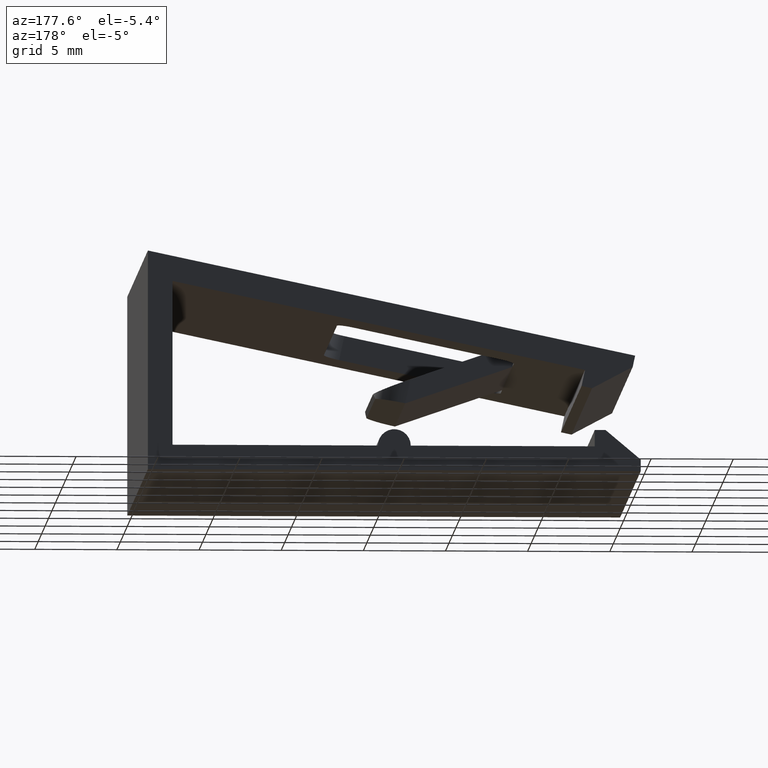
[diagram: clean part render]
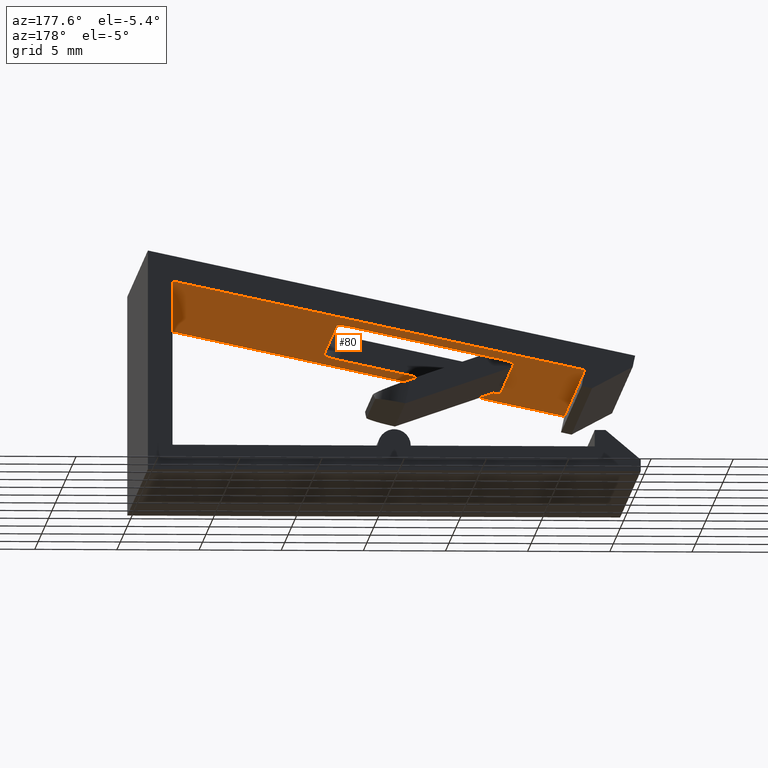
[diagram: same view with one face highlighted and labeled with its STEP entity id]
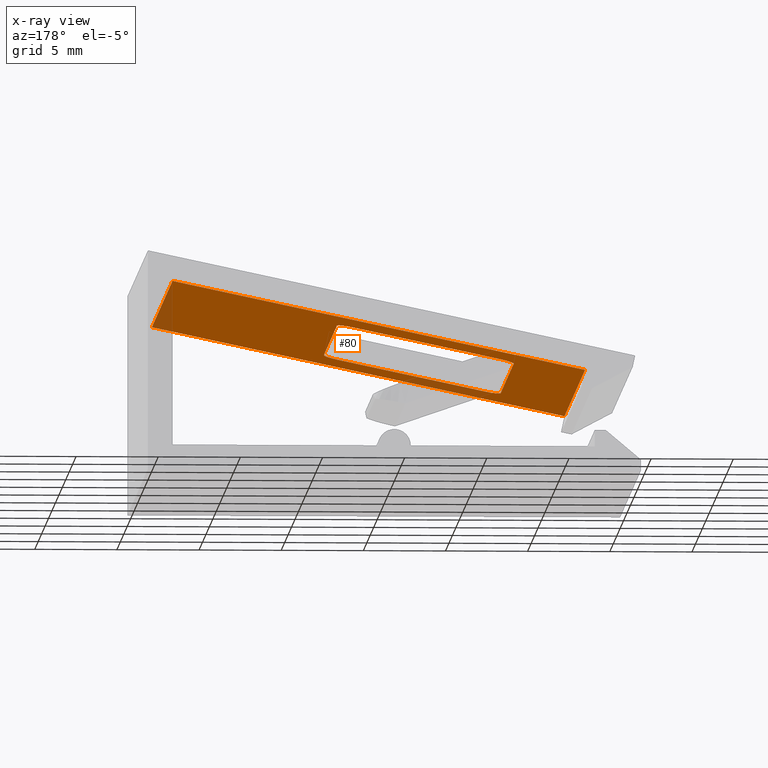
[diagram: x-ray of the same camera — body ghosted, the highlighted face saturated]
A machine part, auxiliary view. The second image highlights one B-rep face of the part: STEP entity #80.
The next image is the same camera in x-ray: the body ghosted, the highlighted face saturated — about 7% of this face is hidden behind the body in this view.
In plain terms, the highlighted planar face has unit normal (0.2079, 0, -0.9781).
Its self-contained STEP definition (entity closure, byte-faithful):
#80 = ADVANCED_FACE( '', ( #121, #122 ), #123, .T. );
#121 = FACE_OUTER_BOUND( '', #193, .T. );
#122 = FACE_BOUND( '', #194, .T. );
#123 = PLANE( '', #195 );
#193 = EDGE_LOOP( '', ( #290, #291, #292, #293 ) );
#194 = EDGE_LOOP( '', ( #294, #295, #296, #297, #298, #299, #300, #301, #302, #303 ) );
#195 = AXIS2_PLACEMENT_3D( '', #304, #305, #306 );
#290 = ORIENTED_EDGE( '', *, *, #562, .F. );
#291 = ORIENTED_EDGE( '', *, *, #563, .F. );
#292 = ORIENTED_EDGE( '', *, *, #564, .T. );
#293 = ORIENTED_EDGE( '', *, *, #565, .T. );
#294 = ORIENTED_EDGE( '', *, *, #566, .F. );
#295 = ORIENTED_EDGE( '', *, *, #567, .T. );
#296 = ORIENTED_EDGE( '', *, *, #568, .T. );
#297 = ORIENTED_EDGE( '', *, *, #569, .T. );
#298 = ORIENTED_EDGE( '', *, *, #570, .F. );
#299 = ORIENTED_EDGE( '', *, *, #560, .T. );
#300 = ORIENTED_EDGE( '', *, *, #571, .F. );
#301 = ORIENTED_EDGE( '', *, *, #572, .T. );
#302 = ORIENTED_EDGE( '', *, *, #573, .F. );
#303 = ORIENTED_EDGE( '', *, *, #574, .T. );
#304 = CARTESIAN_POINT( '', ( -11.6056147399596, 15.0000000000000, 6.16480200975693 ) );
#305 = DIRECTION( '', ( 0.207911690817759, 1.66946366144741E-016, -0.978147600733806 ) );
#306 = DIRECTION( '', ( -0.978147600733806, 9.80837849831438E-017, -0.207911690817759 ) );
#560 = EDGE_CURVE( '', #665, #640, #666, .T. );
#562 = EDGE_CURVE( '', #668, #669, #670, .T. );
#563 = EDGE_CURVE( '', #671, #668, #672, .T. );
#564 = EDGE_CURVE( '', #671, #673, #674, .T. );
#565 = EDGE_CURVE( '', #673, #669, #675, .T. );
#566 = EDGE_CURVE( '', #676, #677, #678, .T. );
#567 = EDGE_CURVE( '', #676, #679, #680, .F. );
#568 = EDGE_CURVE( '', #679, #681, #682, .T. );
#569 = EDGE_CURVE( '', #681, #683, #684, .F. );
#570 = EDGE_CURVE( '', #665, #683, #685, .T. );
#571 = EDGE_CURVE( '', #686, #640, #687, .T. );
#572 = EDGE_CURVE( '', #686, #688, #689, .F. );
#573 = EDGE_CURVE( '', #690, #688, #691, .T. );
#574 = EDGE_CURVE( '', #690, #677, #692, .F. );
#640 = VERTEX_POINT( '', #793 );
#665 = VERTEX_POINT( '', #828 );
#666 = LINE( '', #829, #830 );
#668 = VERTEX_POINT( '', #833 );
#669 = VERTEX_POINT( '', #834 );
#670 = LINE( '', #835, #836 );
#671 = VERTEX_POINT( '', #837 );
#672 = LINE( '', #838, #839 );
#673 = VERTEX_POINT( '', #840 );
#674 = LINE( '', #841, #842 );
#675 = LINE( '', #843, #844 );
#676 = VERTEX_POINT( '', #845 );
#677 = VERTEX_POINT( '', #846 );
#678 = LINE( '', #847, #848 );
#679 = VERTEX_POINT( '', #849 );
#680 = CIRCLE( '', #850, 1.00000000000000 );
#681 = VERTEX_POINT( '', #851 );
#682 = LINE( '', #852, #853 );
#683 = VERTEX_POINT( '', #854 );
#684 = CIRCLE( '', #855, 1.00000000000000 );
#685 = LINE( '', #856, #857 );
#686 = VERTEX_POINT( '', #858 );
#687 = LINE( '', #859, #860 );
#688 = VERTEX_POINT( '', #861 );
#689 = CIRCLE( '', #862, 1.00000000000000 );
#690 = VERTEX_POINT( '', #863 );
#691 = LINE( '', #864, #865 );
#692 = CIRCLE( '', #866, 1.00000000000000 );
#793 = CARTESIAN_POINT( '', ( -7.49739481687761, -7.50000000000000, 7.03803111119152 ) );
#828 = CARTESIAN_POINT( '', ( -7.49739481687761, 7.50000000000000, 7.03803111119153 ) );
#829 = CARTESIAN_POINT( '', ( -7.49739481687761, 7.50000000000000, 7.03803111119153 ) );
#830 = VECTOR( '', #1044, 1000.00000000000 );
#833 = CARTESIAN_POINT( '', ( -11.6056147399596, -15.0000000000000, 6.16480200975693 ) );
#834 = CARTESIAN_POINT( '', ( 13.5000000000000, -15.0000000000000, 11.5011651574950 ) );
#835 = CARTESIAN_POINT( '', ( -11.6056147399596, -15.0000000000000, 6.16480200975693 ) );
#836 = VECTOR( '', #1046, 1000.00000000000 );
#837 = CARTESIAN_POINT( '', ( -11.6056147399596, 15.0000000000000, 6.16480200975693 ) );
#838 = CARTESIAN_POINT( '', ( -11.6056147399596, 15.0000000000000, 6.16480200975693 ) );
#839 = VECTOR( '', #1047, 1000.00000000000 );
#840 = CARTESIAN_POINT( '', ( 13.5000000000000, 15.0000000000000, 11.5011651574950 ) );
#841 = CARTESIAN_POINT( '', ( -11.6056147399596, 15.0000000000000, 6.16480200975693 ) );
#842 = VECTOR( '', #1048, 1000.00000000000 );
#843 = CARTESIAN_POINT( '', ( 13.5000000000000, 15.0000000000000, 11.5011651574950 ) );
#844 = VECTOR( '', #1049, 1000.00000000000 );
#845 = CARTESIAN_POINT( '', ( 3.26222879119427, 9.50000000000000, 9.32505971018688 ) );
#846 = CARTESIAN_POINT( '', ( 3.26222879119426, -9.50000000000000, 9.32505971018687 ) );
#847 = CARTESIAN_POINT( '', ( 3.26222879119427, 15.0000000000000, 9.32505971018688 ) );
#848 = VECTOR( '', #1050, 1000.00000000000 );
#849 = CARTESIAN_POINT( '', ( 2.28408119046046, 10.5000000000000, 9.11714801936912 ) );
#850 = AXIS2_PLACEMENT_3D( '', #1051, #1052, #1053 );
#851 = CARTESIAN_POINT( '', ( -6.51924721614385, 10.5000000000000, 7.24594280200927 ) );
#852 = CARTESIAN_POINT( '', ( -11.6056147399596, 10.5000000000000, 6.16480200975693 ) );
#853 = VECTOR( '', #1054, 1000.00000000000 );
#854 = CARTESIAN_POINT( '', ( -7.49739481687765, 9.50000000000000, 7.03803111119151 ) );
#855 = AXIS2_PLACEMENT_3D( '', #1055, #1056, #1057 );
#856 = CARTESIAN_POINT( '', ( -7.49739481687765, 15.0000000000000, 7.03803111119151 ) );
#857 = VECTOR( '', #1058, 1000.00000000000 );
#858 = CARTESIAN_POINT( '', ( -7.49739481687765, -9.50000000000000, 7.03803111119151 ) );
#859 = CARTESIAN_POINT( '', ( -7.49739481687765, 15.0000000000000, 7.03803111119151 ) );
#860 = VECTOR( '', #1059, 1000.00000000000 );
#861 = CARTESIAN_POINT( '', ( -6.51924721614385, -10.5000000000000, 7.24594280200927 ) );
#862 = AXIS2_PLACEMENT_3D( '', #1060, #1061, #1062 );
#863 = CARTESIAN_POINT( '', ( 2.28408119046046, -10.5000000000000, 9.11714801936911 ) );
#864 = CARTESIAN_POINT( '', ( -11.6056147399596, -10.5000000000000, 6.16480200975693 ) );
#865 = VECTOR( '', #1063, 1000.00000000000 );
#866 = AXIS2_PLACEMENT_3D( '', #1064, #1065, #1066 );
#1044 = DIRECTION( '', ( -6.12303176911189E-017, -1.00000000000000, -1.83690953073357E-016 ) );
#1046 = DIRECTION( '', ( 0.978147600733806, -9.80837849831438E-017, 0.207911690817759 ) );
#1047 = DIRECTION( '', ( -6.12303176911189E-017, -1.00000000000000, -1.83690953073357E-016 ) );
#1048 = DIRECTION( '', ( 0.978147600733806, -9.80837849831438E-017, 0.207911690817759 ) );
#1049 = DIRECTION( '', ( -6.12303176911189E-017, -1.00000000000000, -1.83690953073357E-016 ) );
#1050 = DIRECTION( '', ( -6.12303176911189E-017, -1.00000000000000, -1.83690953073357E-016 ) );
#1051 = CARTESIAN_POINT( '', ( 2.28408119046046, 9.50000000000000, 9.11714801936912 ) );
#1052 = DIRECTION( '', ( 0.207911690817759, 1.66946366144741E-016, -0.978147600733806 ) );
#1053 = DIRECTION( '', ( 0.978147600733806, -9.80837849831439E-017, 0.207911690817759 ) );
#1054 = DIRECTION( '', ( -0.978147600733806, 9.80837849831438E-017, -0.207911690817759 ) );
#1055 = CARTESIAN_POINT( '', ( -6.51924721614385, 9.50000000000000, 7.24594280200928 ) );
#1056 = DIRECTION( '', ( 0.207911690817759, 1.66946366144741E-016, -0.978147600733806 ) );
#1057 = DIRECTION( '', ( 0.978147600733806, -9.80837849831439E-017, 0.207911690817759 ) );
#1058 = DIRECTION( '', ( 6.12303176911189E-017, 1.00000000000000, 1.83690953073357E-016 ) );
#1059 = DIRECTION( '', ( 6.12303176911189E-017, 1.00000000000000, 1.83690953073357E-016 ) );
#1060 = CARTESIAN_POINT( '', ( -6.51924721614385, -9.50000000000000, 7.24594280200927 ) );
#1061 = DIRECTION( '', ( 0.207911690817759, 1.66946366144741E-016, -0.978147600733806 ) );
#1062 = DIRECTION( '', ( 0.978147600733806, -9.80837849831439E-017, 0.207911690817759 ) );
#1063 = DIRECTION( '', ( -0.978147600733806, 9.80837849831438E-017, -0.207911690817759 ) );
#1064 = CARTESIAN_POINT( '', ( 2.28408119046046, -9.50000000000000, 9.11714801936911 ) );
#1065 = DIRECTION( '', ( 0.207911690817759, 1.66946366144741E-016, -0.978147600733806 ) );
#1066 = DIRECTION( '', ( 0.978147600733806, -9.80837849831439E-017, 0.207911690817759 ) );